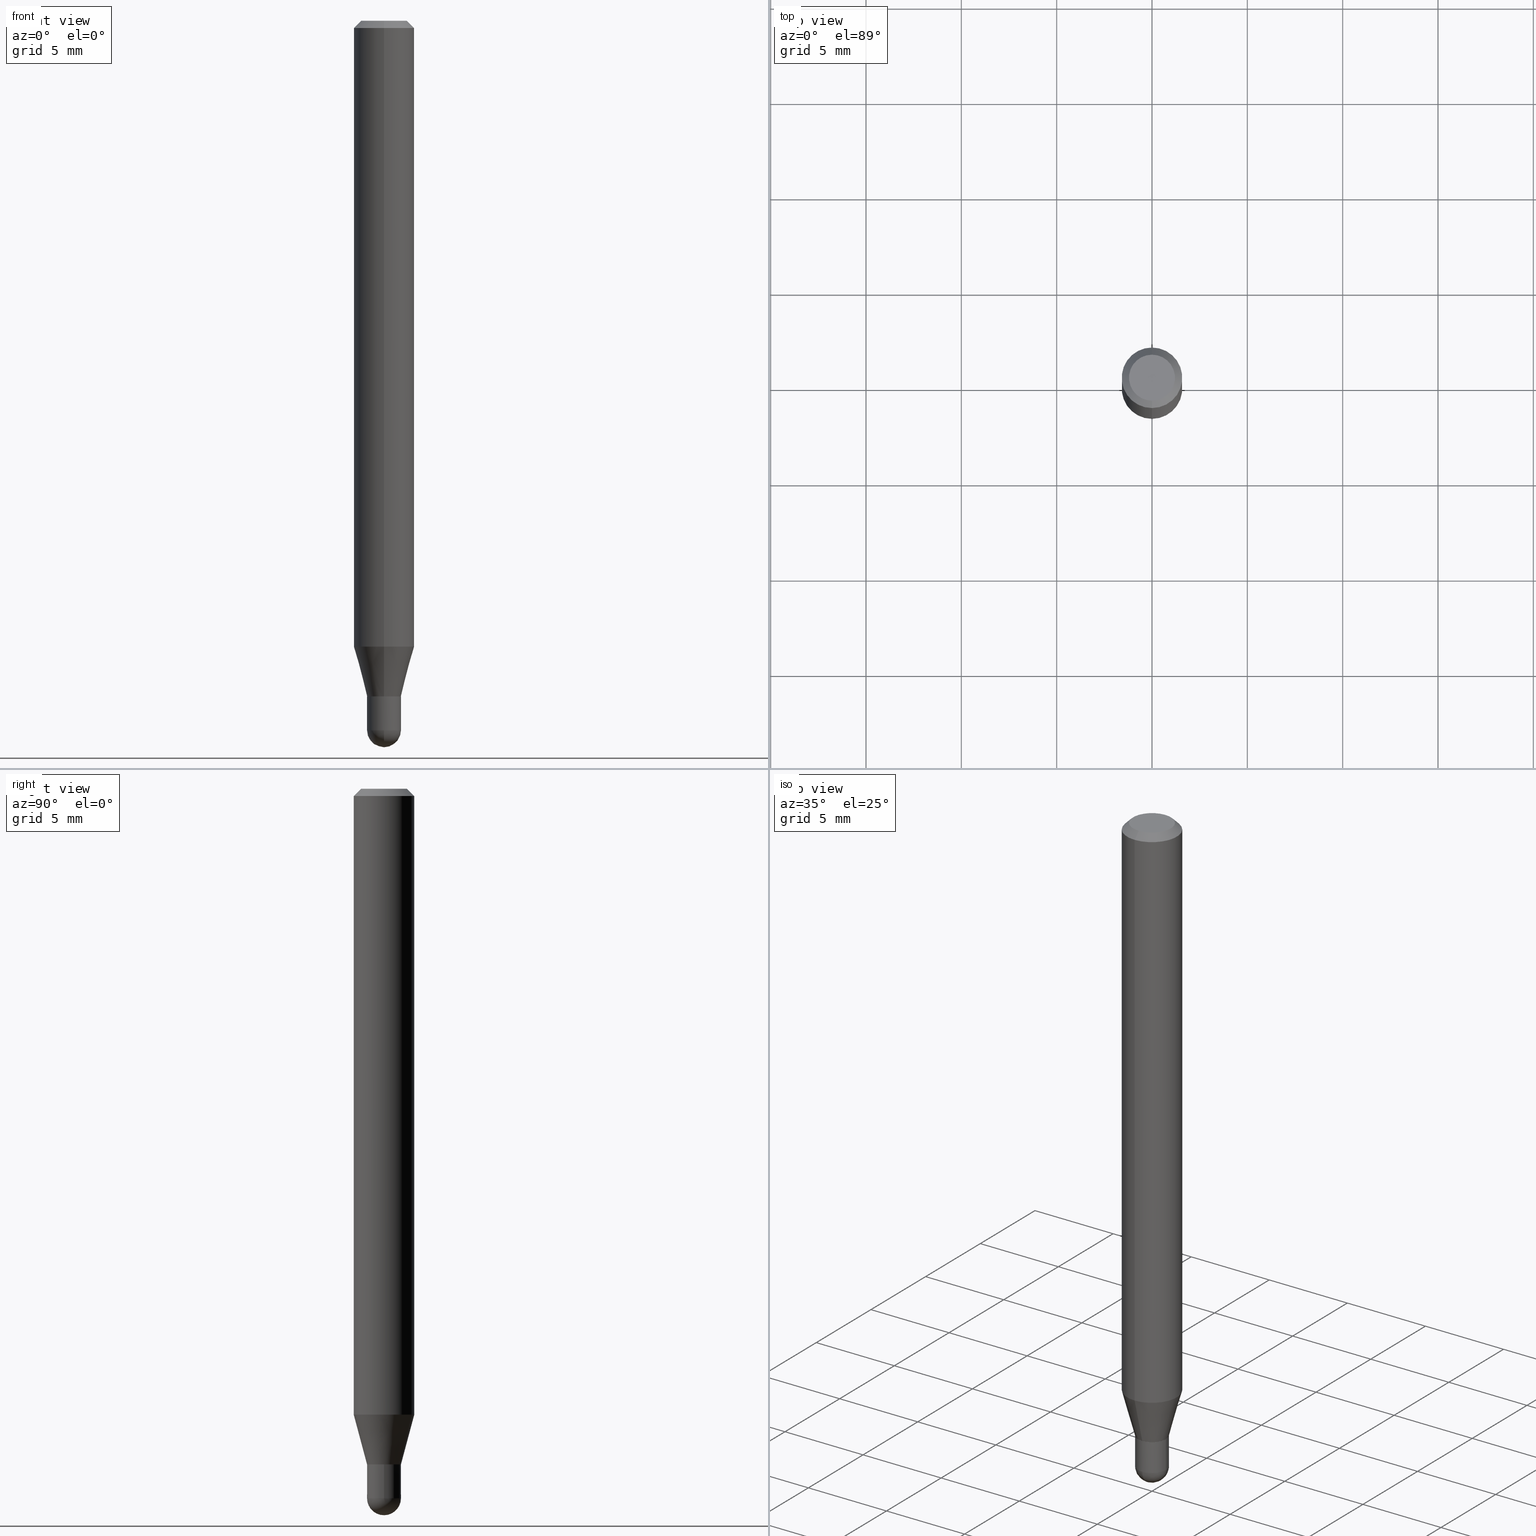
[diagram: canonical four-view strip — front | top / right | iso, engineering-drawing reading convention]
A machine part, canonical four-view strip (front | top / right | iso — engineering-drawing reading convention). The complete STEP part file that produces these views, byte-faithful:
ISO-10303-21;
HEADER;
FILE_DESCRIPTION (( 'STEP AP203' ),
    '1' );
FILE_NAME ('04375.STEP',
    '2024-03-08T18:59:03',
    ( '' ),
    ( '' ),
    'SwSTEP 2.0',
    'SolidWorks 2023',
    '' );
FILE_SCHEMA (( 'CONFIG_CONTROL_DESIGN' ));
ENDSEC;

DATA;
#1 = CIRCLE ( 'NONE', #261, 0.03500000000000019762 ) ;
#2 = EDGE_LOOP ( 'NONE', ( #13, #308, #349, #192, #471 ) ) ;
#3 = VECTOR ( 'NONE', #334, 39.37007874015748143 ) ;
#4 = DIRECTION ( 'NONE',  ( -2.445400408763161075E-29, 3.491579287844353916E-15, 1.000000000000000000 ) ) ;
#5 = ADVANCED_FACE ( 'NONE', ( #159 ), #467, .T. ) ;
#6 = FACE_OUTER_BOUND ( 'NONE', #497, .T. ) ;
#7 = EDGE_CURVE ( 'NONE', #356, #306, #235, .T. ) ;
#8 = CARTESIAN_POINT ( 'NONE',  ( 3.579618719049097467E-29, -5.119306425202223514E-15, -1.465000000000000080 ) ) ;
#9 = DIRECTION ( 'NONE',  ( -6.982962677686266711E-15, -1.000000000000000000, 0.000000000000000000 ) ) ;
#10 = ADVANCED_FACE ( 'NONE', ( #396 ), #388, .F. ) ;
#11 = CIRCLE ( 'NONE', #445, 0.03500000000000000333 ) ;
#12 = DIRECTION ( 'NONE',  ( -6.982962677686266711E-15, -1.000000000000000000, 0.000000000000000000 ) ) ;
#13 = ORIENTED_EDGE ( 'NONE', *, *, #164, .T. ) ;
#14 = DIRECTION ( 'NONE',  ( -2.445400408763161075E-29, 3.491579287844353916E-15, 1.000000000000000000 ) ) ;
#15 = ORIENTED_EDGE ( 'NONE', *, *, #512, .F. ) ;
#16 = CARTESIAN_POINT ( 'NONE',  ( 2.486899575160709326E-16, 0.03499999999999489630, -1.464999999999999858 ) ) ;
#17 = DIRECTION ( 'NONE',  ( -2.445400408763161075E-29, 3.491579287844353916E-15, 1.000000000000000000 ) ) ;
#18 = ORIENTED_EDGE ( 'NONE', *, *, #346, .F. ) ;
#19 = APPLICATION_PROTOCOL_DEFINITION ( 'international standard', 'config_control_design', 1994, #473 ) ;
#20 = AXIS2_PLACEMENT_3D ( 'NONE', #487, #262, #216 ) ;
#21 = APPROVAL_PERSON_ORGANIZATION ( #136, #66, #394 ) ;
#22 = EDGE_CURVE ( 'NONE', #304, #356, #132, .T. ) ;
#23 = ORIENTED_EDGE ( 'NONE', *, *, #271, .T. ) ;
#24 = DIRECTION ( 'NONE',  ( -2.445468806185136597E-29, 3.491481338843145583E-15, 1.000000000000000000 ) ) ;
#25 = DIRECTION ( 'NONE',  ( 7.105427357601001859E-15, 1.000000000000000000, 0.000000000000000000 ) ) ;
#26 = ORIENTED_EDGE ( 'NONE', *, *, #382, .F. ) ;
#27 = CARTESIAN_POINT ( 'NONE',  ( 3.411333570224609450E-29, -4.870753106542874617E-15, -1.395000000000000018 ) ) ;
#28 = CARTESIAN_POINT ( 'NONE',  ( 3.411333570224609450E-29, -4.870753106542874617E-15, -1.395000000000000018 ) ) ;
#29 = CYLINDRICAL_SURFACE ( 'NONE', #418, 0.03500000000000019762 ) ;
#30 = APPROVAL ( #332, 'UNSPECIFIED' ) ;
#31 = PRODUCT ( '04375', '04375', '', ( #379 ) ) ;
#32 = AXIS2_PLACEMENT_3D ( 'NONE', #380, #424, #197 ) ;
#33 = CIRCLE ( 'NONE', #369, 0.03500000000000001721 ) ;
#34 = ORIENTED_EDGE ( 'NONE', *, *, #184, .F. ) ;
#35 = DIRECTION ( 'NONE',  ( -2.445400408763161075E-29, 3.491579287844353916E-15, 1.000000000000000000 ) ) ;
#36 = ORIENTED_EDGE ( 'NONE', *, *, #143, .F. ) ;
#37 = CARTESIAN_POINT ( 'NONE',  ( 3.410110870020228651E-29, -4.869007316898951789E-15, -1.394500000000000073 ) ) ;
#38 = VERTEX_POINT ( 'NONE', #435 ) ;
#39 = CARTESIAN_POINT ( 'NONE',  ( 0.000000000000000000, 0.000000000000000000, 0.000000000000000000 ) ) ;
#40 = DIRECTION ( 'NONE',  ( 2.438088387897960049E-29, -3.491481338843145188E-15, -1.000000000000000000 ) ) ;
#41 = AXIS2_PLACEMENT_3D ( 'NONE', #503, #162, #465 ) ;
#42 = VERTEX_POINT ( 'NONE', #85 ) ;
#43 = EDGE_CURVE ( 'NONE', #150, #304, #245, .T. ) ;
#44 = DIRECTION ( 'NONE',  ( -6.982962677686265922E-15, -1.000000000000000000, 3.483106191921935554E-15 ) ) ;
#45 = DIRECTION ( 'NONE',  ( -6.982962677686265922E-15, -1.000000000000000000, 3.483106191921935554E-15 ) ) ;
#46 = CALENDAR_DATE ( 2024, 8, 3 ) ;
#47 = ADVANCED_FACE ( 'NONE', ( #119 ), #509, .T. ) ;
#48 = CARTESIAN_POINT ( 'NONE',  ( 2.486899575160697000E-16, 0.03499999999999520855, -1.394500000000000073 ) ) ;
#49 = LINE ( 'NONE', #86, #3 ) ;
#50 = DATE_AND_TIME ( #365, #264 ) ;
#51 = CIRCLE ( 'NONE', #201, 0.03500000000000019762 ) ;
#52 =( GEOMETRIC_REPRESENTATION_CONTEXT ( 3 ) GLOBAL_UNCERTAINTY_ASSIGNED_CONTEXT ( ( #175 ) ) GLOBAL_UNIT_ASSIGNED_CONTEXT ( ( #500, #458, #390 ) ) REPRESENTATION_CONTEXT ( 'NONE', 'WORKASPACE' ) );
#53 = DIRECTION ( 'NONE',  ( -2.445468806185136597E-29, 3.491481338843145583E-15, 1.000000000000000000 ) ) ;
#54 = FACE_OUTER_BOUND ( 'NONE', #269, .T. ) ;
#55 = CC_DESIGN_PERSON_AND_ORGANIZATION_ASSIGNMENT ( #202, #317, ( #84 ) ) ;
#56 = ORIENTED_EDGE ( 'NONE', *, *, #315, .T. ) ;
#57 = VERTEX_POINT ( 'NONE', #130 ) ;
#58 = VECTOR ( 'NONE', #505, 39.37007874015748143 ) ;
#59 = DIRECTION ( 'NONE',  ( -1.807323732225378654E-15, -0.2588190451025251249, 0.9659258262890670910 ) ) ;
#60 = AXIS2_PLACEMENT_3D ( 'NONE', #371, #188, #9 ) ;
#61 = ORIENTED_EDGE ( 'NONE', *, *, #417, .F. ) ;
#62 = DIRECTION ( 'NONE',  ( 1.000000000000000000, -6.982962677686276966E-15, 0.000000000000000000 ) ) ;
#63 = EDGE_CURVE ( 'NONE', #109, #38, #421, .T. ) ;
#64 = CARTESIAN_POINT ( 'NONE',  ( -2.444036937189865873E-16, -0.03500000000000506872, -1.395000000000000018 ) ) ;
#65 = ORIENTED_EDGE ( 'NONE', *, *, #191, .T. ) ;
#66 = APPROVAL ( #296, 'UNSPECIFIED' ) ;
#67 = ORIENTED_EDGE ( 'NONE', *, *, #113, .F. ) ;
#68 = AXIS2_PLACEMENT_3D ( 'NONE', #321, #477, #391 ) ;
#69 = EDGE_CURVE ( 'NONE', #146, #226, #236, .T. ) ;
#70 = ORIENTED_EDGE ( 'NONE', *, *, #426, .T. ) ;
#71 = DIRECTION ( 'NONE',  ( 1.000000000000000000, 0.000000000000000000, 0.000000000000000000 ) ) ;
#72 = VERTEX_POINT ( 'NONE', #163 ) ;
#73 = LENGTH_MEASURE_WITH_UNIT ( LENGTH_MEASURE( 0.02539999999999999897 ), #110 );
#74 = CALENDAR_DATE ( 2024, 8, 3 ) ;
#75 = DIRECTION ( 'NONE',  ( -2.445400408763161075E-29, 3.491579287844353916E-15, 1.000000000000000000 ) ) ;
#76 = DIRECTION ( 'NONE',  ( -2.445400408763161075E-29, 3.491579287844353916E-15, 1.000000000000000000 ) ) ;
#77 = PRODUCT_DEFINITION_SHAPE ( 'NONE', 'NONE',  #84 ) ;
#78 = AXIS2_PLACEMENT_3D ( 'NONE', #278, #229, #25 ) ;
#79 = CARTESIAN_POINT ( 'NONE',  ( 3.411333570224610571E-29, -4.870753106542875406E-15, -1.395000000000000240 ) ) ;
#80 = DIRECTION ( 'NONE',  ( -2.445468806185136597E-29, 3.491481338843145583E-15, 1.000000000000000000 ) ) ;
#81 = EDGE_CURVE ( 'NONE', #109, #150, #51, .T. ) ;
#82 = DIRECTION ( 'NONE',  ( 1.000000000000000000, -6.982962677686265922E-15, 4.876176775795936353E-29 ) ) ;
#83 = CARTESIAN_POINT ( 'NONE',  ( -2.409122123801420517E-16, -0.03450000000000487399, -1.395000000000000240 ) ) ;
#84 = PRODUCT_DEFINITION ( 'UNKNOWN', '', #88, #338 ) ;
#85 = CARTESIAN_POINT ( 'NONE',  ( -0.03500000000000000333, -4.744128357029662925E-15, -1.395000000000000018 ) ) ;
#86 = CARTESIAN_POINT ( 'NONE',  ( 2.451372438372686536E-16, 0.03449999999999513178, -1.395000000000000240 ) ) ;
#87 = SHAPE_DEFINITION_REPRESENTATION ( #77, #385 ) ;
#88 = PRODUCT_DEFINITION_FORMATION_WITH_SPECIFIED_SOURCE ( 'ANY', '', #31, .NOT_KNOWN. ) ;
#89 = DIRECTION ( 'NONE',  ( -2.445400408763161075E-29, 3.491579287844353916E-15, 1.000000000000000000 ) ) ;
#90 = CARTESIAN_POINT ( 'NONE',  ( -0.03500000000000000333, 2.486899575160350887E-16, -1.721627281589217108E-30 ) ) ;
#91 = ADVANCED_FACE ( 'NONE', ( #142 ), #156, .T. ) ;
#92 = CARTESIAN_POINT ( 'NONE',  ( 1.601629217107517250E-45, -2.286830157228695507E-31, -6.549558147483881660E-17 ) ) ;
#93 = APPROVAL_ROLE ( '' ) ;
#94 = CARTESIAN_POINT ( 'NONE',  ( 0.000000000000000000, 0.000000000000000000, 0.000000000000000000 ) ) ;
#95 = CARTESIAN_POINT ( 'NONE',  ( 3.411428984628265351E-29, -4.870616467686188228E-15, -1.395000000000000018 ) ) ;
#96 = PLANE ( 'NONE',  #312 ) ;
#97 = CIRCLE ( 'NONE', #460, 0.03450000000000000289 ) ;
#98 = CIRCLE ( 'NONE', #112, 0.03500000000000000333 ) ;
#99 = CARTESIAN_POINT ( 'NONE',  ( 3.411333570224610571E-29, -4.870753106542875406E-15, -1.395000000000000240 ) ) ;
#100 = FACE_OUTER_BOUND ( 'NONE', #372, .T. ) ;
#101 = DIRECTION ( 'NONE',  ( 2.445400408763160794E-29, -3.491579287844353916E-15, -1.000000000000000000 ) ) ;
#102 = ORIENTED_EDGE ( 'NONE', *, *, #43, .T. ) ;
#103 = AXIS2_PLACEMENT_3D ( 'NONE', #151, #205, #320 ) ;
#104 = DIRECTION ( 'NONE',  ( -2.445468806185136877E-29, 3.491481338843145188E-15, 1.000000000000000000 ) ) ;
#105 = VECTOR ( 'NONE', #59, 39.37007874015748854 ) ;
#106 = ORIENTED_EDGE ( 'NONE', *, *, #63, .F. ) ;
#107 = PERSON_AND_ORGANIZATION ( #120, #284 ) ;
#108 = ORIENTED_EDGE ( 'NONE', *, *, #408, .T. ) ;
#109 = VERTEX_POINT ( 'NONE', #64 ) ;
#110 =( LENGTH_UNIT ( ) NAMED_UNIT ( * ) SI_UNIT ( $, .METRE. ) );
#111 = CONICAL_SURFACE ( 'NONE', #367, 0.06250000000000000000, 0.7853981633974483900 ) ;
#112 = AXIS2_PLACEMENT_3D ( 'NONE', #115, #24, #200 ) ;
#113 = EDGE_CURVE ( 'NONE', #212, #306, #210, .T. ) ;
#114 = VERTEX_POINT ( 'NONE', #333 ) ;
#115 = CARTESIAN_POINT ( 'NONE',  ( 3.582611801061224486E-29, -5.115020161405207405E-15, -1.464999999999999858 ) ) ;
#116 = CARTESIAN_POINT ( 'NONE',  ( 3.463895836830824283E-16, 0.03499999999999532652, -1.395000000000000018 ) ) ;
#117 = EDGE_LOOP ( 'NONE', ( #240, #267, #70, #108, #384 ) ) ;
#118 = DIRECTION ( 'NONE',  ( -2.445400408763160794E-29, 3.491579287844353916E-15, 1.000000000000000000 ) ) ;
#119 = FACE_OUTER_BOUND ( 'NONE', #168, .T. ) ;
#120 = PERSON ( 'UNSPECIFIED', 'UNSPECIFIED', 'UNSPECIFIED', ('UNSPECIFIED'), ('UNSPECIFIED'), ('UNSPECIFIED') ) ;
#121 = CARTESIAN_POINT ( 'NONE',  ( 4.440892098500938748E-16, 0.06249999999999544809, -1.292368602791860166 ) ) ;
#122 = LOCAL_TIME ( 13, 59, 3.000000000000000000, #357 ) ;
#123 = ORIENTED_EDGE ( 'NONE', *, *, #271, .F. ) ;
#124 = CARTESIAN_POINT ( 'NONE',  ( 3.160358709539889409E-29, -4.512407445768404913E-15, -1.292368602791859944 ) ) ;
#125 = EDGE_CURVE ( 'NONE', #57, #42, #479, .T. ) ;
#126 = CARTESIAN_POINT ( 'NONE',  ( 3.160358709539889409E-29, -4.512407445768404913E-15, -1.292368602791859944 ) ) ;
#127 = DIRECTION ( 'NONE',  ( -2.445400408763161075E-29, 3.491579287844353916E-15, 1.000000000000000000 ) ) ;
#128 = PERSON_AND_ORGANIZATION_ROLE ( 'classification_officer' ) ;
#129 = ADVANCED_FACE ( 'NONE', ( #289 ), #273, .T. ) ;
#130 = CARTESIAN_POINT ( 'NONE',  ( -0.03500000000000000333, -4.744128357029662925E-15, -1.464999999999999858 ) ) ;
#131 = DIRECTION ( 'NONE',  ( -1.000000000000000000, 6.982962677686265922E-15, -4.883557194083112340E-29 ) ) ;
#132 = CIRCLE ( 'NONE', #138, 0.06250000000000000000 ) ;
#133 = CC_DESIGN_DATE_AND_TIME_ASSIGNMENT ( #404, #252, ( #84 ) ) ;
#134 = CONICAL_SURFACE ( 'NONE', #237, 0.06250000000000000000, 0.7853981633974483900 ) ;
#135 = DIRECTION ( 'NONE',  ( 1.000000000000000000, -6.982962677686265922E-15, 4.876176775795936353E-29 ) ) ;
#136 = PERSON_AND_ORGANIZATION ( #120, #284 ) ;
#137 = EDGE_LOOP ( 'NONE', ( #26, #457, #265, #123 ) ) ;
#138 = AXIS2_PLACEMENT_3D ( 'NONE', #126, #288, #204 ) ;
#139 = CIRCLE ( 'NONE', #410, 0.06250000000000000000 ) ;
#140 = CARTESIAN_POINT ( 'NONE',  ( 0.03500000000000000333, -2.444036937190193250E-16, 1.706661871528577808E-30 ) ) ;
#141 = CC_DESIGN_DATE_AND_TIME_ASSIGNMENT ( #50, #434, ( #480 ) ) ;
#142 = FACE_OUTER_BOUND ( 'NONE', #257, .T. ) ;
#143 = EDGE_CURVE ( 'NONE', #221, #38, #1, .T. ) ;
#144 = ORIENTED_EDGE ( 'NONE', *, *, #63, .T. ) ;
#145 = PRODUCT_RELATED_PRODUCT_CATEGORY ( 'detail', '', ( #31 ) ) ;
#146 = VERTEX_POINT ( 'NONE', #387 ) ;
#147 = CLOSED_SHELL ( 'NONE', ( #448, #488, #244, #47, #5 ) ) ;
#148 = PERSON_AND_ORGANIZATION ( #120, #284 ) ;
#149 = AXIS2_PLACEMENT_3D ( 'NONE', #39, #331, #439 ) ;
#150 = VERTEX_POINT ( 'NONE', #116 ) ;
#151 = CARTESIAN_POINT ( 'NONE',  ( 3.582611801061224486E-29, -5.115020161405207405E-15, -1.464999999999999858 ) ) ;
#152 = ORIENTED_EDGE ( 'NONE', *, *, #69, .F. ) ;
#153 = EDGE_CURVE ( 'NONE', #72, #428, #303, .T. ) ;
#154 = LINE ( 'NONE', #466, #322 ) ;
#155 = EDGE_LOOP ( 'NONE', ( #432, #493 ) ) ;
#156 = CONICAL_SURFACE ( 'NONE', #299, 0.03450000000000000289, 0.7853981633974739252 ) ;
#157 = CARTESIAN_POINT ( 'NONE',  ( 4.364351673553919652E-16, 0.06249999999999995143, -0.01500000000000028394 ) ) ;
#158 = CC_DESIGN_APPROVAL ( #351, ( #84 ) ) ;
#159 = FACE_OUTER_BOUND ( 'NONE', #117, .T. ) ;
#160 = CARTESIAN_POINT ( 'NONE',  ( 0.000000000000000000, 0.000000000000000000, 0.000000000000000000 ) ) ;
#161 = DIRECTION ( 'NONE',  ( 2.445400408763161075E-29, -3.491579287844353916E-15, -1.000000000000000000 ) ) ;
#162 = DIRECTION ( 'NONE',  ( -2.445400408763161075E-29, 3.491579287844353916E-15, 1.000000000000000000 ) ) ;
#163 = CARTESIAN_POINT ( 'NONE',  ( 3.663713586259513245E-29, -5.243651403960241551E-15, -1.500000000000000222 ) ) ;
#164 = EDGE_CURVE ( 'NONE', #428, #57, #437, .T. ) ;
#165 = DATE_AND_TIME ( #46, #472 ) ;
#166 = VECTOR ( 'NONE', #314, 39.37007874015748143 ) ;
#167 = CONICAL_SURFACE ( 'NONE', #60, 0.03500000000000019762, 0.2617993877991574569 ) ;
#168 = EDGE_LOOP ( 'NONE', ( #341, #411, #15, #489 ) ) ;
#169 = CARTESIAN_POINT ( 'NONE',  ( 3.579618719049097467E-29, -5.119306425202223514E-15, -1.465000000000000080 ) ) ;
#170 = DATE_AND_TIME ( #209, #335 ) ;
#171 = CARTESIAN_POINT ( 'NONE',  ( 0.000000000000000000, 0.000000000000000000, 0.000000000000000000 ) ) ;
#172 = DIRECTION ( 'NONE',  ( -4.851104656540964275E-15, -0.7071067811865500152, -0.7071067811865450192 ) ) ;
#173 = PERSON_AND_ORGANIZATION ( #120, #284 ) ;
#174 = ADVANCED_FACE ( 'NONE', ( #355 ), #111, .T. ) ;
#175 = UNCERTAINTY_MEASURE_WITH_UNIT (LENGTH_MEASURE( 1.000000000000000082E-05 ), #500, 'distance_accuracy_value', 'NONE');
#176 = DIRECTION ( 'NONE',  ( -2.445400408763161075E-29, 3.491579287844353916E-15, 1.000000000000000000 ) ) ;
#177 = DIRECTION ( 'NONE',  ( -2.445400408763161075E-29, 3.491579287844353916E-15, 1.000000000000000000 ) ) ;
#178 = AXIS2_PLACEMENT_3D ( 'NONE', #79, #208, #238 ) ;
#179 = AXIS2_PLACEMENT_3D ( 'NONE', #37, #327, #433 ) ;
#180 = ORIENTED_EDGE ( 'NONE', *, *, #315, .F. ) ;
#181 = CARTESIAN_POINT ( 'NONE',  ( -4.287811248607203282E-16, -0.06250000000000005551, -0.01499999999999984852 ) ) ;
#182 = DIRECTION ( 'NONE',  ( -2.445400408763161075E-29, 3.491579287844353916E-15, 1.000000000000000000 ) ) ;
#183 = APPLICATION_CONTEXT ( 'configuration controlled 3d designs of mechanical parts and assemblies' ) ;
#184 = EDGE_CURVE ( 'NONE', #304, #212, #154, .T. ) ;
#185 = DIRECTION ( 'NONE',  ( 1.000000000000000000, -6.982962677686276966E-15, 0.000000000000000000 ) ) ;
#186 = AXIS2_PLACEMENT_3D ( 'NONE', #282, #35, #427 ) ;
#187 = CIRCLE ( 'NONE', #274, 0.03500000000000000333 ) ;
#188 = DIRECTION ( 'NONE',  ( -2.445400408763161075E-29, 3.491579287844353916E-15, 1.000000000000000000 ) ) ;
#189 = ORIENTED_EDGE ( 'NONE', *, *, #417, .T. ) ;
#190 = MANIFOLD_SOLID_BREP ( 'Body-Move/Copy2[2]', #193 ) ;
#191 = EDGE_CURVE ( 'NONE', #231, #114, #397, .T. ) ;
#192 = ORIENTED_EDGE ( 'NONE', *, *, #408, .F. ) ;
#193 = CLOSED_SHELL ( 'NONE', ( #496, #91, #174, #307, #129, #464, #217, #377, #442, #10, #446, #475 ) ) ;
#194 = ORIENTED_EDGE ( 'NONE', *, *, #191, .F. ) ;
#195 = VECTOR ( 'NONE', #253, 39.37007874015748143 ) ;
#196 = EDGE_LOOP ( 'NONE', ( #374, #381, #189, #419 ) ) ;
#197 = DIRECTION ( 'NONE',  ( 1.000000000000000000, -6.982962677686276966E-15, 0.000000000000000000 ) ) ;
#198 = ORIENTED_EDGE ( 'NONE', *, *, #184, .T. ) ;
#199 = EDGE_LOOP ( 'NONE', ( #34, #490, #302, #67 ) ) ;
#200 = DIRECTION ( 'NONE',  ( 1.000000000000000000, -6.982962677686276966E-15, 0.000000000000000000 ) ) ;
#201 = AXIS2_PLACEMENT_3D ( 'NONE', #28, #76, #12 ) ;
#202 = PERSON_AND_ORGANIZATION ( #120, #284 ) ;
#203 = EDGE_CURVE ( 'NONE', #272, #428, #470, .T. ) ;
#204 = DIRECTION ( 'NONE',  ( -6.982962677686265922E-15, -1.000000000000000000, 4.370956789862821150E-15 ) ) ;
#205 = DIRECTION ( 'NONE',  ( -2.445468806185136597E-29, 3.491481338843145583E-15, 1.000000000000000000 ) ) ;
#206 = VERTEX_POINT ( 'NONE', #469 ) ;
#207 = CARTESIAN_POINT ( 'NONE',  ( -4.364351673553602629E-16, -0.06250000000000455191, -1.292368602791859722 ) ) ;
#208 = DIRECTION ( 'NONE',  ( -2.445400408763160794E-29, 3.491579287844353916E-15, 1.000000000000000000 ) ) ;
#209 = CALENDAR_DATE ( 2024, 8, 3 ) ;
#210 = CIRCLE ( 'NONE', #491, 0.06250000000000000000 ) ;
#211 = DIRECTION ( 'NONE',  ( -1.000000000000000000, 6.982962677686265922E-15, -4.876176775795935793E-29 ) ) ;
#212 = VERTEX_POINT ( 'NONE', #337 ) ;
#213 = COORDINATED_UNIVERSAL_TIME_OFFSET ( 5, 0, .BEHIND. ) ;
#214 = CARTESIAN_POINT ( 'NONE',  ( -3.773273898774340269E-16, -0.04749999999999999362, 1.003544346977680073E-16 ) ) ;
#215 = AXIS2_PLACEMENT_3D ( 'NONE', #8, #422, #270 ) ;
#216 = DIRECTION ( 'NONE',  ( -6.982962677686266711E-15, -1.000000000000000000, 3.491579287844353916E-15 ) ) ;
#217 = ADVANCED_FACE ( 'NONE', ( #287 ), #395, .T. ) ;
#218 = CYLINDRICAL_SURFACE ( 'NONE', #20, 0.03500000000000019762 ) ;
#219 = DIRECTION ( 'NONE',  ( -2.445468806185136597E-29, 3.491481338843145583E-15, 1.000000000000000000 ) ) ;
#220 = CIRCLE ( 'NONE', #300, 0.06250000000000000000 ) ;
#221 = VERTEX_POINT ( 'NONE', #48 ) ;
#222 = EDGE_CURVE ( 'NONE', #150, #221, #256, .T. ) ;
#223 = CARTESIAN_POINT ( 'NONE',  ( 3.668100613144757937E-31, -5.237368931766553628E-17, -0.01500000000000006710 ) ) ;
#224 = ORIENTED_EDGE ( 'NONE', *, *, #81, .T. ) ;
#225 = CYLINDRICAL_SURFACE ( 'NONE', #461, 0.03500000000000000333 ) ;
#226 = VERTEX_POINT ( 'NONE', #214 ) ;
#227 = ORIENTED_EDGE ( 'NONE', *, *, #360, .T. ) ;
#228 = CIRCLE ( 'NONE', #179, 0.03500000000000019762 ) ;
#229 = DIRECTION ( 'NONE',  ( 1.000000000000000000, -7.105427357601001070E-15, 4.926315508542082329E-29 ) ) ;
#230 = CC_DESIGN_PERSON_AND_ORGANIZATION_ASSIGNMENT ( #148, #305, ( #31 ) ) ;
#231 = VERTEX_POINT ( 'NONE', #83 ) ;
#232 = DIRECTION ( 'NONE',  ( 1.839019923739649619E-15, 0.2588190451025318972, 0.9659258262890653146 ) ) ;
#233 = EDGE_CURVE ( 'NONE', #114, #231, #97, .T. ) ;
#234 = DATE_AND_TIME ( #74, #361 ) ;
#235 = LINE ( 'NONE', #506, #353 ) ;
#236 = CIRCLE ( 'NONE', #41, 0.04749999999999999362 ) ;
#237 = AXIS2_PLACEMENT_3D ( 'NONE', #399, #481, #294 ) ;
#238 = DIRECTION ( 'NONE',  ( -6.982962677686265922E-15, -1.000000000000000000, 3.491579287844353916E-15 ) ) ;
#239 = DIRECTION ( 'NONE',  ( -6.982962677686266711E-15, -1.000000000000000000, 0.000000000000000000 ) ) ;
#240 = ORIENTED_EDGE ( 'NONE', *, *, #125, .F. ) ;
#241 = DIRECTION ( 'NONE',  ( -6.982962677686265922E-15, -1.000000000000000000, 4.370956789862821150E-15 ) ) ;
#242 = COORDINATED_UNIVERSAL_TIME_OFFSET ( 5, 0, .BEHIND. ) ;
#243 = CARTESIAN_POINT ( 'NONE',  ( 2.444036937190534432E-16, 0.03499999999999513223, -1.395000000000000018 ) ) ;
#244 = ADVANCED_FACE ( 'NONE', ( #443 ), #96, .F. ) ;
#245 = LINE ( 'NONE', #279, #263 ) ;
#246 = DIRECTION ( 'NONE',  ( 1.000000000000000000, -6.982962677686276966E-15, 0.000000000000000000 ) ) ;
#247 = PERSON_AND_ORGANIZATION ( #120, #284 ) ;
#248 = VECTOR ( 'NONE', #172, 39.37007874015748143 ) ;
#249 = CIRCLE ( 'NONE', #376, 0.03500000000000000333 ) ;
#250 = CARTESIAN_POINT ( 'NONE',  ( 3.411333570224610571E-29, -4.870753106542875406E-15, -1.395000000000000240 ) ) ;
#251 = FACE_OUTER_BOUND ( 'NONE', #413, .T. ) ;
#252 = DATE_TIME_ROLE ( 'creation_date' ) ;
#253 = DIRECTION ( 'NONE',  ( -2.445468806185136877E-29, 3.491481338843145188E-15, 1.000000000000000000 ) ) ;
#254 = CARTESIAN_POINT ( 'NONE',  ( -4.364351673553912750E-16, -0.06250000000000005551, -0.01499999999999984852 ) ) ;
#255 = PERSON_AND_ORGANIZATION ( #120, #284 ) ;
#256 = LINE ( 'NONE', #392, #260 ) ;
#257 = EDGE_LOOP ( 'NONE', ( #65, #227, #180, #352 ) ) ;
#258 = LINE ( 'NONE', #301, #105 ) ;
#259 = EDGE_CURVE ( 'NONE', #231, #38, #508, .T. ) ;
#260 = VECTOR ( 'NONE', #476, 39.37007874015748143 ) ;
#261 = AXIS2_PLACEMENT_3D ( 'NONE', #310, #75, #239 ) ;
#262 = DIRECTION ( 'NONE',  ( -2.445400408763161075E-29, 3.491579287844353916E-15, 1.000000000000000000 ) ) ;
#263 = VECTOR ( 'NONE', #232, 39.37007874015748143 ) ;
#264 = LOCAL_TIME ( 13, 59, 3.000000000000000000, #213 ) ;
#265 = ORIENTED_EDGE ( 'NONE', *, *, #346, .T. ) ;
#266 = DIRECTION ( 'NONE',  ( -2.445468806185136597E-29, 3.491481338843145583E-15, 1.000000000000000000 ) ) ;
#267 = ORIENTED_EDGE ( 'NONE', *, *, #512, .T. ) ;
#268 = DIRECTION ( 'NONE',  ( 0.000000000000000000, 0.000000000000000000, 1.000000000000000000 ) ) ;
#269 = EDGE_LOOP ( 'NONE', ( #462, #474, #403, #106 ) ) ;
#270 = DIRECTION ( 'NONE',  ( -6.982962677686265922E-15, -1.000000000000000000, 0.000000000000000000 ) ) ;
#271 = EDGE_CURVE ( 'NONE', #146, #212, #383, .T. ) ;
#272 = VERTEX_POINT ( 'NONE', #501 ) ;
#273 = CONICAL_SURFACE ( 'NONE', #429, 0.03500000000000019762, 0.2617993877991574569 ) ;
#274 = AXIS2_PLACEMENT_3D ( 'NONE', #95, #219, #62 ) ;
#275 = DIRECTION ( 'NONE',  ( -4.937700262164674260E-15, -0.7071067811865632269, 0.7071067811865319186 ) ) ;
#276 = ORIENTED_EDGE ( 'NONE', *, *, #233, .F. ) ;
#277 = APPROVAL_STATUS ( 'not_yet_approved' ) ;
#278 = CARTESIAN_POINT ( 'NONE',  ( 3.579618719049097467E-29, -5.119306425202223514E-15, -1.465000000000000080 ) ) ;
#279 = CARTESIAN_POINT ( 'NONE',  ( 2.486899575160705875E-16, 0.03499999999999532652, -1.395000000000000018 ) ) ;
#280 = EDGE_CURVE ( 'NONE', #226, #306, #281, .T. ) ;
#281 = LINE ( 'NONE', #181, #248 ) ;
#282 = CARTESIAN_POINT ( 'NONE',  ( 3.411333570224610571E-29, -4.870753106542875406E-15, -1.395000000000000240 ) ) ;
#283 = AXIS2_PLACEMENT_3D ( 'NONE', #94, #4, #400 ) ;
#284 = ORGANIZATION ( 'UNSPECIFIED', 'UNSPECIFIED', '' ) ;
#285 = ORIENTED_EDGE ( 'NONE', *, *, #7, .F. ) ;
#286 = PERSON_AND_ORGANIZATION ( #120, #284 ) ;
#287 = FACE_OUTER_BOUND ( 'NONE', #199, .T. ) ;
#288 = DIRECTION ( 'NONE',  ( -2.445400408763161075E-29, 3.491579287844353916E-15, 1.000000000000000000 ) ) ;
#289 = FACE_OUTER_BOUND ( 'NONE', #326, .T. ) ;
#290 = CC_DESIGN_PERSON_AND_ORGANIZATION_ASSIGNMENT ( #247, #128, ( #480 ) ) ;
#291 = DIRECTION ( 'NONE',  ( -6.982962677686266711E-15, -1.000000000000000000, 0.000000000000000000 ) ) ;
#292 = COORDINATED_UNIVERSAL_TIME_OFFSET ( 5, 0, .BEHIND. ) ;
#293 = AXIS2_PLACEMENT_3D ( 'NONE', #444, #101, #409 ) ;
#294 = DIRECTION ( 'NONE',  ( 6.982962677686265922E-15, 1.000000000000000000, -3.483106191921935554E-15 ) ) ;
#295 = FACE_OUTER_BOUND ( 'NONE', #393, .T. ) ;
#296 = APPROVAL_STATUS ( 'not_yet_approved' ) ;
#297 = DIRECTION ( 'NONE',  ( -6.982962677686265133E-15, -1.000000000000000000, 0.000000000000000000 ) ) ;
#298 = EDGE_LOOP ( 'NONE', ( #350, #198, #18, #285 ) ) ;
#299 = AXIS2_PLACEMENT_3D ( 'NONE', #250, #14, #453 ) ;
#300 = AXIS2_PLACEMENT_3D ( 'NONE', #431, #176, #45 ) ;
#301 = CARTESIAN_POINT ( 'NONE',  ( -2.444036937189865873E-16, -0.03500000000000506872, -1.395000000000000018 ) ) ;
#302 = ORIENTED_EDGE ( 'NONE', *, *, #7, .T. ) ;
#303 = CIRCLE ( 'NONE', #78, 0.03500000000000001721 ) ;
#304 = VERTEX_POINT ( 'NONE', #121 ) ;
#305 = PERSON_AND_ORGANIZATION_ROLE ( 'design_owner' ) ;
#306 = VERTEX_POINT ( 'NONE', #254 ) ;
#307 = ADVANCED_FACE ( 'NONE', ( #478 ), #468, .T. ) ;
#308 = ORIENTED_EDGE ( 'NONE', *, *, #125, .T. ) ;
#309 = EDGE_CURVE ( 'NONE', #72, #425, #33, .T. ) ;
#310 = CARTESIAN_POINT ( 'NONE',  ( 3.410110870020228651E-29, -4.869007316898951789E-15, -1.394500000000000073 ) ) ;
#311 = ORIENTED_EDGE ( 'NONE', *, *, #280, .F. ) ;
#312 = AXIS2_PLACEMENT_3D ( 'NONE', #243, #40, #211 ) ;
#313 = APPROVAL_PERSON_ORGANIZATION ( #107, #351, #423 ) ;
#314 = DIRECTION ( 'NONE',  ( 4.937700262164548042E-15, 0.7071067811865451302, -0.7071067811865499042 ) ) ;
#315 = EDGE_CURVE ( 'NONE', #38, #221, #228, .T. ) ;
#316 = DIRECTION ( 'NONE',  ( -2.445400408763160794E-29, 3.491579287844353916E-15, 1.000000000000000000 ) ) ;
#317 = PERSON_AND_ORGANIZATION_ROLE ( 'creator' ) ;
#318 = DIRECTION ( 'NONE',  ( 6.982962677686265922E-15, 1.000000000000000000, -3.483106191921935554E-15 ) ) ;
#319 = DIRECTION ( 'NONE',  ( -2.445468806185136597E-29, 3.491481338843145583E-15, 1.000000000000000000 ) ) ;
#320 = DIRECTION ( 'NONE',  ( 1.000000000000000000, -6.982962677686276966E-15, 0.000000000000000000 ) ) ;
#321 = CARTESIAN_POINT ( 'NONE',  ( 3.579618719049097467E-29, -5.119306425202223514E-15, -1.465000000000000080 ) ) ;
#322 = VECTOR ( 'NONE', #118, 39.37007874015748143 ) ;
#323 = VECTOR ( 'NONE', #104, 39.37007874015748143 ) ;
#324 = PERSON_AND_ORGANIZATION_ROLE ( 'creator' ) ;
#325 = APPROVAL_PERSON_ORGANIZATION ( #173, #30, #93 ) ;
#326 = EDGE_LOOP ( 'NONE', ( #224, #102, #459, #61 ) ) ;
#327 = DIRECTION ( 'NONE',  ( -2.445400408763161075E-29, 3.491579287844353916E-15, 1.000000000000000000 ) ) ;
#328 = EDGE_CURVE ( 'NONE', #42, #206, #249, .T. ) ;
#329 = APPROVAL_DATE_TIME ( #170, #66 ) ;
#330 = ORIENTED_EDGE ( 'NONE', *, *, #153, .T. ) ;
#331 = DIRECTION ( 'NONE',  ( -2.445400408763161075E-29, 3.491579287844353916E-15, 1.000000000000000000 ) ) ;
#332 = APPROVAL_STATUS ( 'not_yet_approved' ) ;
#333 = CARTESIAN_POINT ( 'NONE',  ( 2.469136006766695959E-16, 0.03449999999999513178, -1.395000000000000240 ) ) ;
#334 = DIRECTION ( 'NONE',  ( 5.024295867788190974E-15, 0.7071067811865681119, 0.7071067811865270336 ) ) ;
#335 = LOCAL_TIME ( 13, 59, 3.000000000000000000, #242 ) ;
#336 = PLANE ( 'NONE',  #293 ) ;
#337 = CARTESIAN_POINT ( 'NONE',  ( 4.440892098500943678E-16, 0.06249999999999995143, -0.01500000000000028394 ) ) ;
#338 = DESIGN_CONTEXT ( 'detailed design', #183, 'design' ) ;
#339 = CARTESIAN_POINT ( 'NONE',  ( 0.000000000000000000, 0.000000000000000000, 0.000000000000000000 ) ) ;
#340 = AXIS2_PLACEMENT_3D ( 'NONE', #171, #319, #82 ) ;
#341 = ORIENTED_EDGE ( 'NONE', *, *, #153, .F. ) ;
#342 = CARTESIAN_POINT ( 'NONE',  ( 3.582611801061224486E-29, -5.115020161405207405E-15, -1.464999999999999858 ) ) ;
#343 = ORIENTED_EDGE ( 'NONE', *, *, #259, .T. ) ;
#344 = EDGE_CURVE ( 'NONE', #150, #109, #454, .T. ) ;
#345 = EDGE_LOOP ( 'NONE', ( #378, #452, #343, #36 ) ) ;
#346 = EDGE_CURVE ( 'NONE', #306, #212, #220, .T. ) ;
#347 = CC_DESIGN_APPROVAL ( #30, ( #88 ) ) ;
#348 = ORIENTED_EDGE ( 'NONE', *, *, #426, .F. ) ;
#349 = ORIENTED_EDGE ( 'NONE', *, *, #398, .F. ) ;
#350 = ORIENTED_EDGE ( 'NONE', *, *, #363, .T. ) ;
#351 = APPROVAL ( #277, 'UNSPECIFIED' ) ;
#352 = ORIENTED_EDGE ( 'NONE', *, *, #259, .F. ) ;
#353 = VECTOR ( 'NONE', #316, 39.37007874015748143 ) ;
#354 = DIRECTION ( 'NONE',  ( -6.982962677686266711E-15, -1.000000000000000000, 3.491579287844353916E-15 ) ) ;
#355 = FACE_OUTER_BOUND ( 'NONE', #137, .T. ) ;
#356 = VERTEX_POINT ( 'NONE', #207 ) ;
#357 = COORDINATED_UNIVERSAL_TIME_OFFSET ( 5, 0, .BEHIND. ) ;
#358 = CARTESIAN_POINT ( 'NONE',  ( -2.444036937190207055E-16, -0.03500000000000019762, 1.222052750745530803E-16 ) ) ;
#359 = ORIENTED_EDGE ( 'NONE', *, *, #69, .T. ) ;
#360 = EDGE_CURVE ( 'NONE', #114, #221, #49, .T. ) ;
#361 = LOCAL_TIME ( 13, 59, 3.000000000000000000, #416 ) ;
#362 = ORIENTED_EDGE ( 'NONE', *, *, #113, .T. ) ;
#363 = EDGE_CURVE ( 'NONE', #356, #304, #139, .T. ) ;
#364 = CARTESIAN_POINT ( 'NONE',  ( 3.411428984628265351E-29, -4.870616467686188228E-15, -1.395000000000000018 ) ) ;
#365 = CALENDAR_DATE ( 2024, 8, 3 ) ;
#366 = CARTESIAN_POINT ( 'NONE',  ( 3.411333570224610571E-29, -4.870753106542875406E-15, -1.395000000000000240 ) ) ;
#367 = AXIS2_PLACEMENT_3D ( 'NONE', #502, #161, #318 ) ;
#368 = SPHERICAL_SURFACE ( 'NONE', #215, 0.03500000000000001721 ) ;
#369 = AXIS2_PLACEMENT_3D ( 'NONE', #169, #131, #401 ) ;
#370 = ORIENTED_EDGE ( 'NONE', *, *, #222, .F. ) ;
#371 = CARTESIAN_POINT ( 'NONE',  ( 3.411333570224609450E-29, -4.870753106542874617E-15, -1.395000000000000018 ) ) ;
#372 = EDGE_LOOP ( 'NONE', ( #359, #414 ) ) ;
#373 = CARTESIAN_POINT ( 'NONE',  ( -2.444036937189835304E-16, -0.03500000000000512423, -1.464999999999999858 ) ) ;
#374 = ORIENTED_EDGE ( 'NONE', *, *, #43, .F. ) ;
#375 = VECTOR ( 'NONE', #275, 39.37007874015748143 ) ;
#376 = AXIS2_PLACEMENT_3D ( 'NONE', #364, #80, #246 ) ;
#377 = ADVANCED_FACE ( 'NONE', ( #251 ), #134, .T. ) ;
#378 = ORIENTED_EDGE ( 'NONE', *, *, #360, .F. ) ;
#379 = MECHANICAL_CONTEXT ( 'NONE', #473, 'mechanical' ) ;
#380 = CARTESIAN_POINT ( 'NONE',  ( 3.582611801061224486E-29, -5.115020161405207405E-15, -1.464999999999999858 ) ) ;
#381 = ORIENTED_EDGE ( 'NONE', *, *, #344, .T. ) ;
#382 = EDGE_CURVE ( 'NONE', #226, #146, #486, .T. ) ;
#383 = LINE ( 'NONE', #157, #166 ) ;
#384 = ORIENTED_EDGE ( 'NONE', *, *, #328, .F. ) ;
#385 = ADVANCED_BREP_SHAPE_REPRESENTATION ( '04375', ( #510, #190, #492 ), #52 ) ;
#386 = APPROVAL_DATE_TIME ( #234, #351 ) ;
#387 = CARTESIAN_POINT ( 'NONE',  ( 3.840629472727447874E-16, 0.04749999999999999362, -2.313455976474456528E-16 ) ) ;
#388 = PLANE ( 'NONE',  #178 ) ;
#389 = CC_DESIGN_APPROVAL ( #66, ( #480 ) ) ;
#390 =( NAMED_UNIT ( * ) SI_UNIT ( $, .STERADIAN. ) SOLID_ANGLE_UNIT ( ) );
#391 = DIRECTION ( 'NONE',  ( -6.982962677686265922E-15, -1.000000000000000000, 0.000000000000000000 ) ) ;
#392 = CARTESIAN_POINT ( 'NONE',  ( 2.486899575160364692E-16, 0.03500000000000019762, -1.222052750745530803E-16 ) ) ;
#393 = EDGE_LOOP ( 'NONE', ( #370, #484, #144, #56 ) ) ;
#394 = APPROVAL_ROLE ( '' ) ;
#395 = CYLINDRICAL_SURFACE ( 'NONE', #283, 0.06250000000000000000 ) ;
#396 = FACE_OUTER_BOUND ( 'NONE', #494, .T. ) ;
#397 = CIRCLE ( 'NONE', #186, 0.03450000000000000289 ) ;
#398 = EDGE_CURVE ( 'NONE', #206, #42, #187, .T. ) ;
#399 = CARTESIAN_POINT ( 'NONE',  ( 3.668100613144757937E-31, -5.237368931766553628E-17, -0.01500000000000006710 ) ) ;
#400 = DIRECTION ( 'NONE',  ( -6.982962677686265922E-15, -1.000000000000000000, 3.491579287844353916E-15 ) ) ;
#401 = DIRECTION ( 'NONE',  ( -6.982962677686265922E-15, -1.000000000000000000, 0.000000000000000000 ) ) ;
#402 = PERSON_AND_ORGANIZATION_ROLE ( 'design_supplier' ) ;
#403 = ORIENTED_EDGE ( 'NONE', *, *, #143, .T. ) ;
#404 = DATE_AND_TIME ( #504, #122 ) ;
#405 = CC_DESIGN_SECURITY_CLASSIFICATION ( #480, ( #88 ) ) ;
#406 = FACE_OUTER_BOUND ( 'NONE', #2, .T. ) ;
#407 = DIMENSIONAL_EXPONENTS ( 1.000000000000000000, 0.000000000000000000, 0.000000000000000000, 0.000000000000000000, 0.000000000000000000, 0.000000000000000000, 0.000000000000000000 ) ;
#408 = EDGE_CURVE ( 'NONE', #272, #206, #441, .T. ) ;
#409 = DIRECTION ( 'NONE',  ( 6.982962677686265922E-15, 1.000000000000000000, -3.491579287844353916E-15 ) ) ;
#410 = AXIS2_PLACEMENT_3D ( 'NONE', #124, #89, #241 ) ;
#411 = ORIENTED_EDGE ( 'NONE', *, *, #309, .T. ) ;
#412 = DIRECTION ( 'NONE',  ( -6.982962677686265133E-15, -1.000000000000000000, 0.000000000000000000 ) ) ;
#413 = EDGE_LOOP ( 'NONE', ( #311, #152, #23, #362 ) ) ;
#414 = ORIENTED_EDGE ( 'NONE', *, *, #382, .T. ) ;
#415 = CARTESIAN_POINT ( 'NONE',  ( -2.409122123801420517E-16, -0.03450000000000487399, -1.395000000000000240 ) ) ;
#416 = COORDINATED_UNIVERSAL_TIME_OFFSET ( 5, 0, .BEHIND. ) ;
#417 = EDGE_CURVE ( 'NONE', #109, #356, #258, .T. ) ;
#418 = AXIS2_PLACEMENT_3D ( 'NONE', #160, #495, #354 ) ;
#419 = ORIENTED_EDGE ( 'NONE', *, *, #22, .F. ) ;
#420 = CARTESIAN_POINT ( 'NONE',  ( 0.000000000000000000, 0.000000000000000000, 0.000000000000000000 ) ) ;
#421 = LINE ( 'NONE', #358, #58 ) ;
#422 = DIRECTION ( 'NONE',  ( 1.000000000000000000, -6.982962677686265922E-15, 4.883557194083112340E-29 ) ) ;
#423 = APPROVAL_ROLE ( '' ) ;
#424 = DIRECTION ( 'NONE',  ( -2.445468806185136597E-29, 3.491481338843145583E-15, 1.000000000000000000 ) ) ;
#425 = VERTEX_POINT ( 'NONE', #373 ) ;
#426 = EDGE_CURVE ( 'NONE', #425, #272, #11, .T. ) ;
#427 = DIRECTION ( 'NONE',  ( -6.982962677686265133E-15, -1.000000000000000000, 0.000000000000000000 ) ) ;
#428 = VERTEX_POINT ( 'NONE', #16 ) ;
#429 = AXIS2_PLACEMENT_3D ( 'NONE', #27, #450, #463 ) ;
#430 = AXIS2_PLACEMENT_3D ( 'NONE', #92, #182, #447 ) ;
#431 = CARTESIAN_POINT ( 'NONE',  ( 3.668100613144757937E-31, -5.237368931766553628E-17, -0.01500000000000006710 ) ) ;
#432 = ORIENTED_EDGE ( 'NONE', *, *, #398, .T. ) ;
#433 = DIRECTION ( 'NONE',  ( -6.982962677686266711E-15, -1.000000000000000000, 0.000000000000000000 ) ) ;
#434 = DATE_TIME_ROLE ( 'classification_date' ) ;
#435 = CARTESIAN_POINT ( 'NONE',  ( -2.444036937189874254E-16, -0.03500000000000518668, -1.394500000000000073 ) ) ;
#436 = CC_DESIGN_PERSON_AND_ORGANIZATION_ASSIGNMENT ( #255, #324, ( #88 ) ) ;
#437 = CIRCLE ( 'NONE', #32, 0.03500000000000000333 ) ;
#438 = AXIS2_PLACEMENT_3D ( 'NONE', #99, #482, #412 ) ;
#439 = DIRECTION ( 'NONE',  ( -6.982962677686265922E-15, -1.000000000000000000, 3.491579287844353916E-15 ) ) ;
#440 = APPROVAL_DATE_TIME ( #165, #30 ) ;
#441 = LINE ( 'NONE', #140, #323 ) ;
#442 = ADVANCED_FACE ( 'NONE', ( #100 ), #336, .F. ) ;
#443 = FACE_OUTER_BOUND ( 'NONE', #155, .T. ) ;
#444 = CARTESIAN_POINT ( 'NONE',  ( 3.316907271900976096E-16, 0.04749999999999999362, -1.985978069100262013E-16 ) ) ;
#445 = AXIS2_PLACEMENT_3D ( 'NONE', #342, #266, #185 ) ;
#446 = ADVANCED_FACE ( 'NONE', ( #449 ), #498, .T. ) ;
#447 = DIRECTION ( 'NONE',  ( -6.982962677686266711E-15, -1.000000000000000000, 3.491579287844354705E-15 ) ) ;
#448 = ADVANCED_FACE ( 'NONE', ( #406 ), #225, .T. ) ;
#449 = FACE_OUTER_BOUND ( 'NONE', #345, .T. ) ;
#450 = DIRECTION ( 'NONE',  ( -2.445400408763161075E-29, 3.491579287844353916E-15, 1.000000000000000000 ) ) ;
#451 = CC_DESIGN_PERSON_AND_ORGANIZATION_ASSIGNMENT ( #286, #402, ( #88 ) ) ;
#452 = ORIENTED_EDGE ( 'NONE', *, *, #233, .T. ) ;
#453 = DIRECTION ( 'NONE',  ( -6.982962677686265133E-15, -1.000000000000000000, 0.000000000000000000 ) ) ;
#454 = CIRCLE ( 'NONE', #507, 0.03500000000000019762 ) ;
#455 = ORIENTED_EDGE ( 'NONE', *, *, #309, .F. ) ;
#456 = APPLICATION_PROTOCOL_DEFINITION ( 'international standard', 'config_control_design', 1994, #183 ) ;
#457 = ORIENTED_EDGE ( 'NONE', *, *, #280, .T. ) ;
#458 =( NAMED_UNIT ( * ) PLANE_ANGLE_UNIT ( ) SI_UNIT ( $, .RADIAN. ) );
#459 = ORIENTED_EDGE ( 'NONE', *, *, #363, .F. ) ;
#460 = AXIS2_PLACEMENT_3D ( 'NONE', #366, #177, #297 ) ;
#461 = AXIS2_PLACEMENT_3D ( 'NONE', #339, #53, #135 ) ;
#462 = ORIENTED_EDGE ( 'NONE', *, *, #344, .F. ) ;
#463 = DIRECTION ( 'NONE',  ( -6.982962677686266711E-15, -1.000000000000000000, 0.000000000000000000 ) ) ;
#464 = ADVANCED_FACE ( 'NONE', ( #485 ), #167, .T. ) ;
#465 = DIRECTION ( 'NONE',  ( -6.982962677686266711E-15, -1.000000000000000000, 3.491579287844354705E-15 ) ) ;
#466 = CARTESIAN_POINT ( 'NONE',  ( 4.440892098500625669E-16, 0.06250000000000000000, -2.182237054902721198E-16 ) ) ;
#467 = CYLINDRICAL_SURFACE ( 'NONE', #340, 0.03500000000000000333 ) ;
#468 = CYLINDRICAL_SURFACE ( 'NONE', #149, 0.06250000000000000000 ) ;
#469 = CARTESIAN_POINT ( 'NONE',  ( 0.03500000000000000333, -5.115020161405208194E-15, -1.395000000000000018 ) ) ;
#470 = CIRCLE ( 'NONE', #103, 0.03500000000000000333 ) ;
#471 = ORIENTED_EDGE ( 'NONE', *, *, #203, .T. ) ;
#472 = LOCAL_TIME ( 13, 59, 3.000000000000000000, #292 ) ;
#473 = APPLICATION_CONTEXT ( 'configuration controlled 3d designs of mechanical parts and assemblies' ) ;
#474 = ORIENTED_EDGE ( 'NONE', *, *, #222, .T. ) ;
#475 = ADVANCED_FACE ( 'NONE', ( #295 ), #218, .F. ) ;
#476 = DIRECTION ( 'NONE',  ( -2.445400408763160794E-29, 3.491579287844353916E-15, 1.000000000000000000 ) ) ;
#477 = DIRECTION ( 'NONE',  ( 1.000000000000000000, -6.982962677686265922E-15, 4.883557194083112340E-29 ) ) ;
#478 = FACE_OUTER_BOUND ( 'NONE', #298, .T. ) ;
#479 = LINE ( 'NONE', #90, #195 ) ;
#480 = SECURITY_CLASSIFICATION ( '', '', #483 ) ;
#481 = DIRECTION ( 'NONE',  ( 2.445400408763161075E-29, -3.491579287844353916E-15, -1.000000000000000000 ) ) ;
#482 = DIRECTION ( 'NONE',  ( -2.445400408763161075E-29, 3.491579287844353916E-15, 1.000000000000000000 ) ) ;
#483 = SECURITY_CLASSIFICATION_LEVEL ( 'unclassified' ) ;
#484 = ORIENTED_EDGE ( 'NONE', *, *, #81, .F. ) ;
#485 = FACE_OUTER_BOUND ( 'NONE', #196, .T. ) ;
#486 = CIRCLE ( 'NONE', #430, 0.04749999999999999362 ) ;
#487 = CARTESIAN_POINT ( 'NONE',  ( 0.000000000000000000, 0.000000000000000000, 0.000000000000000000 ) ) ;
#488 = ADVANCED_FACE ( 'NONE', ( #6 ), #368, .T. ) ;
#489 = ORIENTED_EDGE ( 'NONE', *, *, #164, .F. ) ;
#490 = ORIENTED_EDGE ( 'NONE', *, *, #22, .T. ) ;
#491 = AXIS2_PLACEMENT_3D ( 'NONE', #223, #17, #44 ) ;
#492 = AXIS2_PLACEMENT_3D ( 'NONE', #420, #268, #71 ) ;
#493 = ORIENTED_EDGE ( 'NONE', *, *, #328, .T. ) ;
#494 = EDGE_LOOP ( 'NONE', ( #194, #276 ) ) ;
#495 = DIRECTION ( 'NONE',  ( -2.445400408763161075E-29, 3.491579287844353916E-15, 1.000000000000000000 ) ) ;
#496 = ADVANCED_FACE ( 'NONE', ( #54 ), #29, .F. ) ;
#497 = EDGE_LOOP ( 'NONE', ( #455, #330, #499, #348 ) ) ;
#498 = CONICAL_SURFACE ( 'NONE', #438, 0.03450000000000000289, 0.7853981633974739252 ) ;
#499 = ORIENTED_EDGE ( 'NONE', *, *, #203, .F. ) ;
#500 =( CONVERSION_BASED_UNIT ( 'INCH', #73 ) LENGTH_UNIT ( ) NAMED_UNIT ( #407 ) );
#501 = CARTESIAN_POINT ( 'NONE',  ( 0.03500000000000000333, -5.237222008264717388E-15, -1.464999999999999858 ) ) ;
#502 = CARTESIAN_POINT ( 'NONE',  ( 3.668100613144757937E-31, -5.237368931766553628E-17, -0.01500000000000006710 ) ) ;
#503 = CARTESIAN_POINT ( 'NONE',  ( 1.601629217107517250E-45, -2.286830157228695507E-31, -6.549558147483881660E-17 ) ) ;
#504 = CALENDAR_DATE ( 2024, 8, 3 ) ;
#505 = DIRECTION ( 'NONE',  ( -2.445400408763160794E-29, 3.491579287844353916E-15, 1.000000000000000000 ) ) ;
#506 = CARTESIAN_POINT ( 'NONE',  ( -4.364351673553916201E-16, -0.06250000000000000000, 2.182237054902721198E-16 ) ) ;
#507 = AXIS2_PLACEMENT_3D ( 'NONE', #511, #127, #291 ) ;
#508 = LINE ( 'NONE', #415, #375 ) ;
#509 = SPHERICAL_SURFACE ( 'NONE', #68, 0.03500000000000001721 ) ;
#510 = MANIFOLD_SOLID_BREP ( 'Body-Move/Copy2[1]', #147 ) ;
#511 = CARTESIAN_POINT ( 'NONE',  ( 3.411333570224609450E-29, -4.870753106542874617E-15, -1.395000000000000018 ) ) ;
#512 = EDGE_CURVE ( 'NONE', #57, #425, #98, .T. ) ;
ENDSEC;
END-ISO-10303-21;
